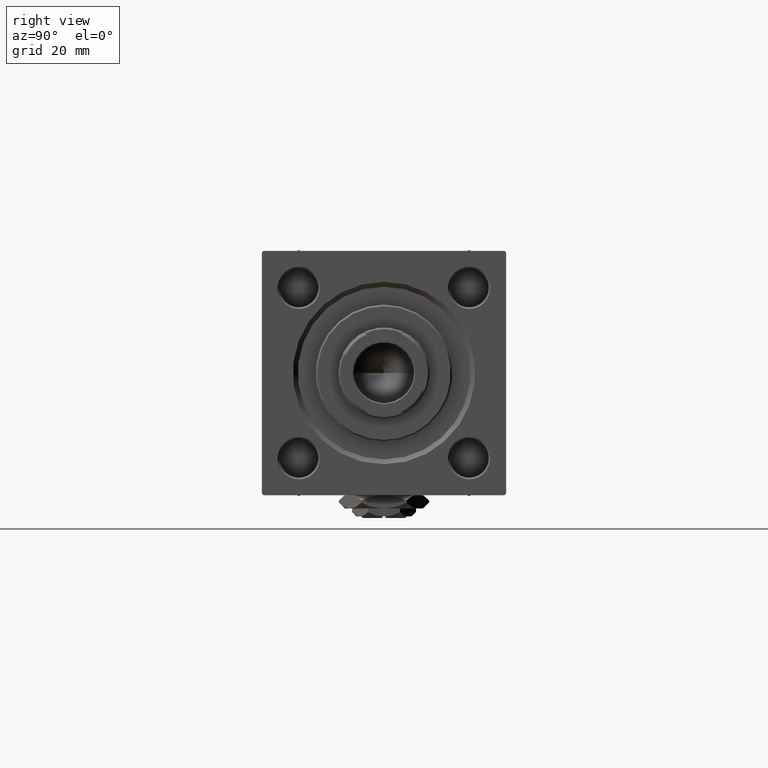
[diagram: clean part render]
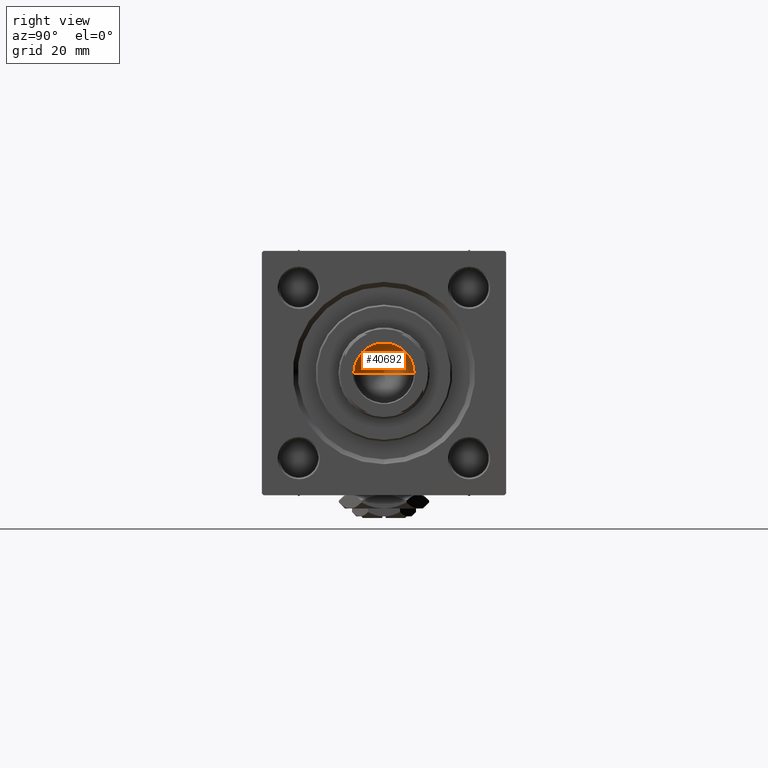
[diagram: same view with one face highlighted and labeled with its STEP entity id]
A machine part, right view. The second image highlights one B-rep face of the part: STEP entity #40692.
In plain terms, the highlighted conical surface has half-angle 59 deg.
Its self-contained STEP definition (entity closure, byte-faithful):
#986 = DIRECTION ( 'NONE',  ( 1.000000000000000000, 0.000000000000000000, 0.000000000000000000 ) ) ;
#3782 = AXIS2_PLACEMENT_3D ( 'NONE', #37967, #34244, #9696 ) ;
#4445 = CARTESIAN_POINT ( 'NONE',  ( 0.000000000000000000, 0.000000000000000000, 107.0000000000000142 ) ) ;
#5378 = ORIENTED_EDGE ( 'NONE', *, *, #28217, .T. ) ;
#8602 = DIRECTION ( 'NONE',  ( 0.8571673007021117785, 0.000000000000000000, 0.5150380749100550437 ) ) ;
#9696 = DIRECTION ( 'NONE',  ( 1.000000000000000000, 0.000000000000000000, 0.000000000000000000 ) ) ;
#10936 = AXIS2_PLACEMENT_3D ( 'NONE', #4445, #41158, #986 ) ;
#11996 = CARTESIAN_POINT ( 'NONE',  ( -9.769621978240258809E-15, 0.000000000000000000, 101.4420392739950785 ) ) ;
#13707 = ORIENTED_EDGE ( 'NONE', *, *, #51470, .F. ) ;
#22097 = EDGE_LOOP ( 'NONE', ( #13707, #46762, #5378 ) ) ;
#25548 = FACE_OUTER_BOUND ( 'NONE', #22097, .T. ) ;
#26244 = LINE ( 'NONE', #45285, #31974 ) ;
#28217 = EDGE_CURVE ( 'NONE', #44916, #48047, #44294, .T. ) ;
#28606 = CONICAL_SURFACE ( 'NONE', #10936, 9.249999999999992895, 1.029744258676653423 ) ;
#30613 = CARTESIAN_POINT ( 'NONE',  ( -9.249999999999992895, 1.132798289211300712E-15, 107.0000000000000142 ) ) ;
#31974 = VECTOR ( 'NONE', #41331, 1000.000000000000000 ) ;
#34244 = DIRECTION ( 'NONE',  ( -0.000000000000000000, -0.000000000000000000, 1.000000000000000000 ) ) ;
#35437 = VERTEX_POINT ( 'NONE', #11996 ) ;
#36773 = EDGE_CURVE ( 'NONE', #35437, #44916, #26244, .T. ) ;
#37401 = CARTESIAN_POINT ( 'NONE',  ( 9.249999999999992895, 0.000000000000000000, 107.0000000000000142 ) ) ;
#37967 = CARTESIAN_POINT ( 'NONE',  ( 0.000000000000000000, 0.000000000000000000, 107.0000000000000142 ) ) ;
#40692 = ADVANCED_FACE ( 'NONE', ( #25548 ), #28606, .F. ) ;
#40854 = LINE ( 'NONE', #37401, #45777 ) ;
#41158 = DIRECTION ( 'NONE',  ( -0.000000000000000000, -0.000000000000000000, 1.000000000000000000 ) ) ;
#41331 = DIRECTION ( 'NONE',  ( -0.8571673007021117785, 1.049727191138617956E-16, 0.5150380749100550437 ) ) ;
#44294 = CIRCLE ( 'NONE', #3782, 9.249999999999992895 ) ;
#44916 = VERTEX_POINT ( 'NONE', #30613 ) ;
#45285 = CARTESIAN_POINT ( 'NONE',  ( -9.249999999999992895, 1.132798289211300712E-15, 107.0000000000000142 ) ) ;
#45777 = VECTOR ( 'NONE', #8602, 1000.000000000000000 ) ;
#46762 = ORIENTED_EDGE ( 'NONE', *, *, #36773, .T. ) ;
#46865 = CARTESIAN_POINT ( 'NONE',  ( 9.249999999999992895, 0.000000000000000000, 107.0000000000000142 ) ) ;
#48047 = VERTEX_POINT ( 'NONE', #46865 ) ;
#51470 = EDGE_CURVE ( 'NONE', #35437, #48047, #40854, .T. ) ;